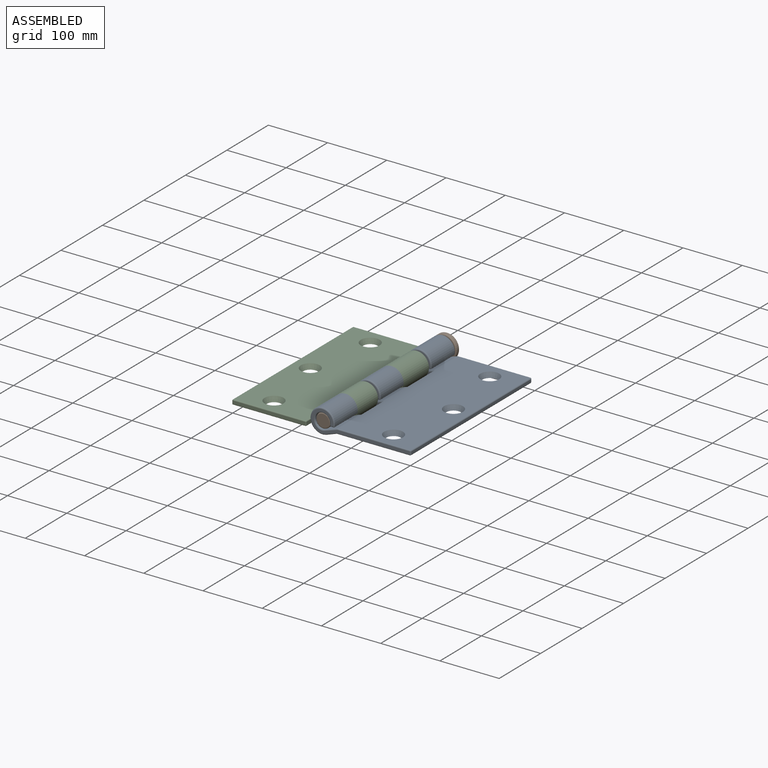
[diagram: assembled view]
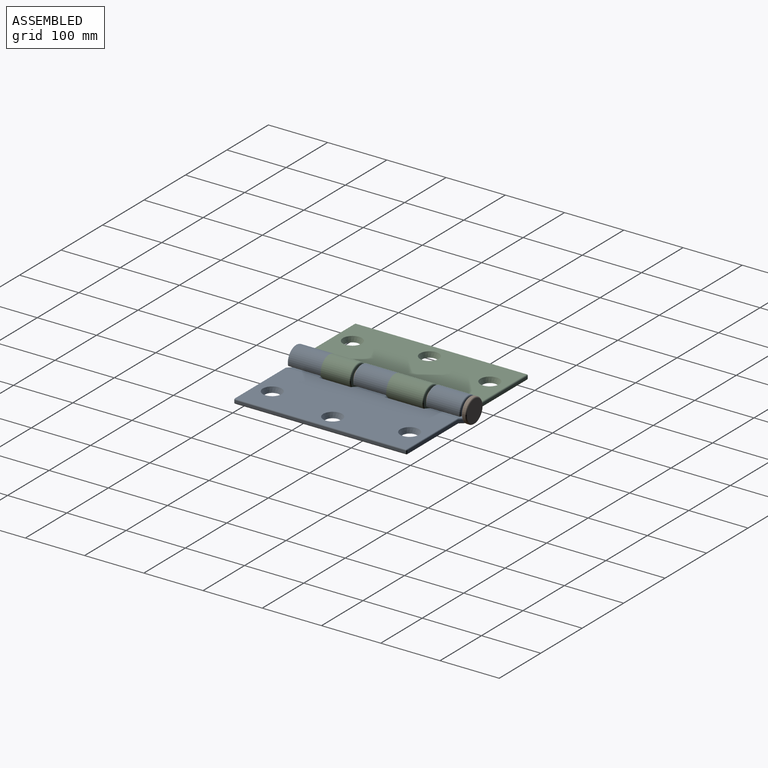
[diagram: assembled view, second angle]
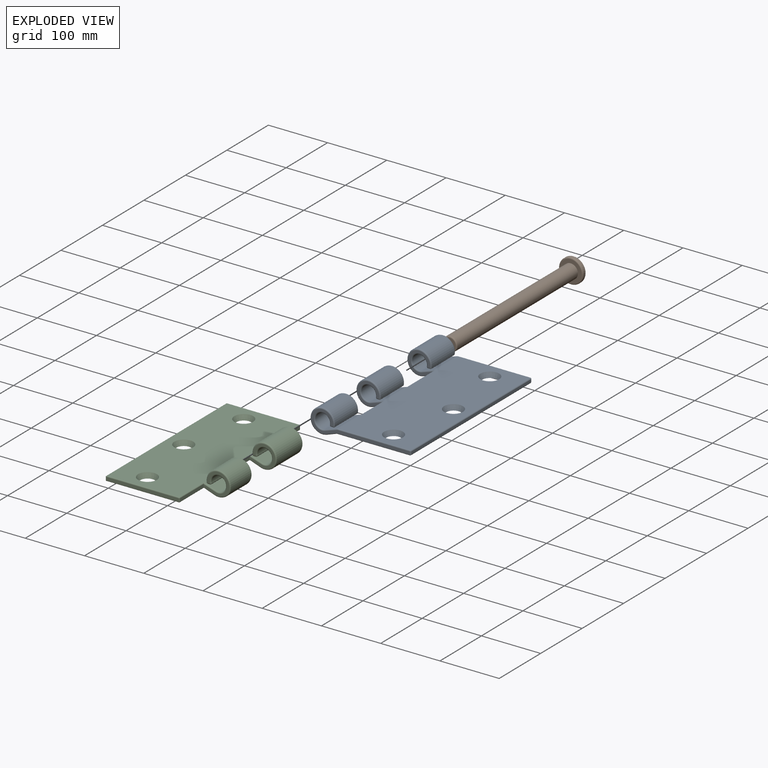
[diagram: exploded view]
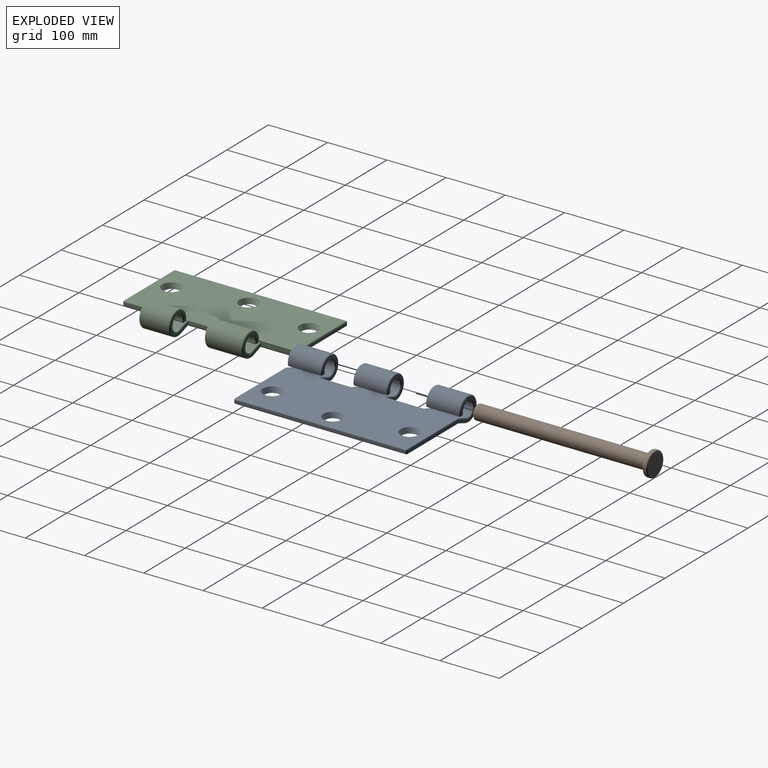
[diagram: exploded view, second angle]
ASSEMBLY  parts=3 mates=2
PART A: 99 faces, bbox 174x294.8x46.7 mm
  f0: plane 54.4x20.54mm, normal (-0.32,0,0.95), area 1178.1mm2, adj f2,f10,f38,f44
  f1: plane 54.4x20.31mm, normal (-0.32,0,0.95), area 1164.8mm2, adj f11,f40,f50,f71
  f2: plane 289x123mm, normal (0,0,1), area 32899.9mm2, adj f0,f20,f21,f22,f38,f44,f53,f54
  f3: plane 291.35x131.28mm, normal (0,0,-1), area 34002.1mm2, adj f4,f5,f14,f20,f21,f22,f24,f25
  f4: plane 54.4x17.59mm, normal (0.34,0,-0.94), area 1016.3mm2, adj f3,f6,f30,f36
  f5: plane 54.4x17.59mm, normal (0.34,0,-0.94), area 1016.3mm2, adj f3,f7,f32,f52
  f6: cylinder r=20.5mm len=54.4mm, axis (0,1,0), area 5819.9mm2, adj f4,f29,f35,f83
  f7: cylinder r=20.5mm len=54.4mm, axis (0,1,0), area 5819.9mm2, adj f5,f31,f51,f98
  f8: plane 54.4x4.07mm, normal (0,0,-1), area 221.3mm2, adj f83,f86,f87,f90
  f9: plane 54.4x4.07mm, normal (0,0,-1), area 221.3mm2, adj f91,f94,f95,f98
  f10: cylinder r=12.5mm len=54.4mm, axis (0,1,0), area 3564.8mm2, adj f0,f37,f43,f90
  f11: cylinder r=12.5mm len=54.4mm, axis (0,1,0), area 3564.8mm2, adj f1,f39,f49,f91
  f12: plane 54.4x20.31mm, normal (-0.32,0,0.95), area 1164.8mm2, adj f17,f42,f46,f64
  f13: plane 288x4mm, normal (1,0,0), area 1152mm2, adj f57,f58,f59,f60
  f14: plane 54.4x17.59mm, normal (0.34,0,-0.94), area 1016.3mm2, adj f3,f15,f34,f48
  f15: cylinder r=20.5mm len=54.4mm, axis (0,1,0), area 5819.9mm2, adj f14,f33,f47,f75
  f16: plane 54.4x4.07mm, normal (0,0,-1), area 221.3mm2, adj f75,f78,f79,f82
  f17: cylinder r=12.5mm len=54.4mm, axis (0,1,0), area 3564.8mm2, adj f12,f41,f45,f82
  f18: plane 166x37mm, normal (0,-1,0), area 1036.4mm2, adj f49,f50,f51,f52,f60,f69,f73,f94
  f19: plane 166x37mm, normal (0,1,0), area 1036.4mm2, adj f45,f46,f47,f48,f57,f62,f66,f79
  f20: cone r=16mm half-angle=26.6deg, axis (0,0,1), area 786.8mm2, adj f2,f3
  f21: cone r=16mm half-angle=26.6deg, axis (0,0,1), area 786.8mm2, adj f2,f3
  f22: cone r=16mm half-angle=26.6deg, axis (0,0,1), area 786.8mm2, adj f2,f3
  f23: plane 64.58x5mm, normal (-1,0,0), area 322.2mm2, adj f24,f25,f42,f44,f54,f56
  f24: plane 44.7x37mm, normal (0,-1,0), area 429.4mm2, adj f3,f23,f33,f34,f41,f42,f56,f78
  f25: plane 44.7x37mm, normal (0,1,0), area 429.4mm2, adj f3,f23,f35,f36,f43,f44,f56,f87
  f26: plane 52.5x5mm, normal (-1,0,0), area 261.8mm2, adj f27,f28,f38,f40,f53,f55
  f27: plane 44.7x37mm, normal (0,-1,0), area 429.4mm2, adj f3,f26,f29,f30,f37,f38,f55,f86
  f28: plane 44.7x37mm, normal (0,1,0), area 429.4mm2, adj f3,f26,f31,f32,f39,f40,f55,f95
  f29: torus R=18.5mm, axis (0,-1,0), area 324.2mm2, adj f6,f27,f30,f84
  f30: cylinder r=2mm len=18.26mm, axis (-0.94,0,-0.34), area 49.9mm2, adj f3,f4,f27,f29
  f31: torus R=18.5mm, axis (0,1,0), area 324.2mm2, adj f7,f28,f32,f97
  f32: cylinder r=2mm len=18.26mm, axis (0.94,0,0.34), area 49.9mm2, adj f3,f5,f28,f31
  f33: torus R=18.5mm, axis (0,1,0), area 324.2mm2, adj f15,f24,f34,f76
  f34: cylinder r=2mm len=18.26mm, axis (-0.94,0,-0.34), area 49.9mm2, adj f3,f14,f24,f33
  f35: torus R=18.5mm, axis (0,1,0), area 324.2mm2, adj f6,f25,f36,f85
  f36: cylinder r=2mm len=18.26mm, axis (0.94,0,0.34), area 49.9mm2, adj f3,f4,f25,f35
  f37: torus R=14.5mm, axis (0,-1,0), area 217.8mm2, adj f10,f27,f38,f88
  f38: cylinder r=2mm len=22.7mm, axis (0.95,0,0.32), area 68.7mm2, adj f0,f2,f26,f27,f37,f53
  f39: torus R=14.5mm, axis (0,1,0), area 217.8mm2, adj f11,f28,f40,f93
  f40: cylinder r=2mm len=21.45mm, axis (-0.95,0,-0.32), area 67.9mm2, adj f1,f26,f28,f39,f53,f72
  f41: torus R=14.5mm, axis (0,1,0), area 217.8mm2, adj f17,f24,f42,f80
  f42: cylinder r=2mm len=21.45mm, axis (0.95,0,0.32), area 67.9mm2, adj f12,f23,f24,f41,f54,f65
  f43: torus R=14.5mm, axis (0,1,0), area 217.8mm2, adj f10,f25,f44,f89
  f44: cylinder r=2mm len=22.7mm, axis (-0.95,0,-0.32), area 68.7mm2, adj f0,f2,f23,f25,f43,f54
  f45: torus R=14.5mm, axis (0,-1,0), area 217.8mm2, adj f17,f19,f46,f81
  f46: cylinder r=2mm len=22.37mm, axis (0.95,0,0.32), area 69.6mm2, adj f12,f19,f45,f63
  f47: torus R=18.5mm, axis (0,-1,0), area 324.2mm2, adj f15,f19,f48,f77
  f48: cylinder r=2mm len=18.26mm, axis (-0.94,0,-0.34), area 56.9mm2, adj f3,f14,f19,f47,f66
  f49: torus R=14.5mm, axis (0,-1,0), area 217.8mm2, adj f11,f18,f50,f92
  f50: cylinder r=2mm len=22.37mm, axis (-0.95,0,-0.32), area 69.6mm2, adj f1,f18,f49,f70
  f51: torus R=18.5mm, axis (0,-1,0), area 324.2mm2, adj f7,f18,f52,f96
  f52: cylinder r=2mm len=18.26mm, axis (0.94,0,0.34), area 56.9mm2, adj f3,f5,f18,f51,f73
  f53: cylinder r=1.5mm len=54.5mm, axis (0,-1,0), area 125.8mm2, adj f2,f26,f38,f40,f72
  f54: cylinder r=1.5mm len=66.58mm, axis (0,-1,0), area 154.3mm2, adj f2,f23,f42,f44,f65
  f55: cylinder r=1.5mm len=52.36mm, axis (0,1,0), area 123.4mm2, adj f3,f26,f27,f28
  f56: cylinder r=1.5mm len=64.44mm, axis (0,1,0), area 151.8mm2, adj f3,f23,f24,f25
  f57: cylinder r=2mm len=5mm, axis (0,0,-1), area 14.1mm2, adj f13,f19,f61,f67
  f58: cylinder r=2mm len=289mm, axis (0,-1,0), area 906.3mm2, adj f2,f13,f61,f68
  f59: cylinder r=2mm len=289mm, axis (0,1,0), area 906.3mm2, adj f3,f13,f67,f74
  f60: cylinder r=2mm len=5mm, axis (0,0,1), area 14.1mm2, adj f13,f18,f68,f74
  f61: bspline ~2.11x2mm, area 3.3mm2, adj f57,f58,f62
  f62: cylinder r=1.5mm len=121.18mm, axis (1,0,0), area 285.5mm2, adj f2,f19,f61,f63
  f63: bspline ~2.43x2.33mm, area 3.3mm2, adj f2,f46,f62,f64
  f64: cylinder r=1.5mm len=54.4mm, axis (0,1,0), area 26.3mm2, adj f2,f12,f63,f65
  f65: bspline ~2.4x2.14mm, area 1.6mm2, adj f2,f42,f54,f64
  f66: cylinder r=1.5mm len=124.74mm, axis (-1,0,0), area 292.1mm2, adj f3,f19,f48,f67
  f67: bspline ~2.45x2mm, area 3.3mm2, adj f57,f59,f66
  f68: bspline ~2.11x2mm, area 3.3mm2, adj f58,f60,f69
  f69: cylinder r=1.5mm len=121.18mm, axis (-1,0,0), area 285.5mm2, adj f2,f18,f68,f70
  f70: bspline ~2.43x2.25mm, area 3.3mm2, adj f2,f50,f69,f71
  f71: cylinder r=1.5mm len=54.4mm, axis (0,1,0), area 26.3mm2, adj f1,f2,f70,f72
  f72: bspline ~2.14x2.05mm, area 1.6mm2, adj f2,f40,f53,f71
  f73: cylinder r=1.5mm len=124.74mm, axis (1,0,0), area 292.1mm2, adj f3,f18,f52,f74
  f74: bspline ~2.45x2mm, area 3.3mm2, adj f59,f60,f73
  f75: cylinder r=2mm len=54.4mm, axis (0,1,0), area 153.2mm2, adj f15,f16,f76,f77
  f76: sphere r=2mm, area 5.6mm2, adj f33,f75,f78
  f77: sphere r=2mm, area 8.1mm2, adj f47,f75,f79
  f78: cylinder r=2mm len=4.07mm, axis (-1,0,0), area 12.8mm2, adj f16,f24,f76,f80
  f79: cylinder r=2mm len=4.07mm, axis (-1,0,0), area 12.8mm2, adj f16,f19,f77,f81
  f80: sphere r=2mm, area 6.9mm2, adj f41,f78,f82
  f81: sphere r=2mm, area 9.2mm2, adj f45,f79,f82
  f82: cylinder r=2mm len=54.4mm, axis (0,1,0), area 193.5mm2, adj f16,f17,f80,f81
  f83: cylinder r=2mm len=54.4mm, axis (0,1,0), area 153.2mm2, adj f6,f8,f84,f85
  f84: sphere r=2mm, area 5.6mm2, adj f29,f83,f86
  f85: sphere r=2mm, area 3.5mm2, adj f35,f83,f87
  f86: cylinder r=2mm len=4.07mm, axis (-1,0,0), area 12.8mm2, adj f8,f27,f84,f88
  f87: cylinder r=2mm len=4.07mm, axis (1,0,0), area 12.8mm2, adj f8,f25,f85,f89
  f88: sphere r=2mm, area 6.9mm2, adj f37,f86,f90
  f89: sphere r=2mm, area 9.2mm2, adj f43,f87,f90
  f90: cylinder r=2mm len=54.4mm, axis (0,1,0), area 193.5mm2, adj f8,f10,f88,f89
  f91: cylinder r=2mm len=54.4mm, axis (0,1,0), area 193.5mm2, adj f9,f11,f92,f93
  f92: sphere r=2mm, area 6.9mm2, adj f49,f91,f94
  f93: sphere r=2mm, area 9.2mm2, adj f39,f91,f95
  f94: cylinder r=2mm len=4.07mm, axis (1,0,0), area 12.8mm2, adj f9,f18,f92,f96
  f95: cylinder r=2mm len=4.07mm, axis (1,0,0), area 12.8mm2, adj f9,f28,f93,f97
  f96: sphere r=2mm, area 5.6mm2, adj f51,f94,f98
  f97: sphere r=2mm, area 3.5mm2, adj f31,f95,f98
  f98: cylinder r=2mm len=54.4mm, axis (0,1,0), area 153.2mm2, adj f7,f9,f96,f97
PART B: 8 faces, bbox 44.4x300x44.4 mm
  f0: cylinder r=12.25mm len=290mm, axis (0,-1,0), area 22321mm2, adj f4,f7
  f1: plane 20.5x20.5mm, normal (0,-1,0), area 330.1mm2, adj f7
  f2: cylinder r=20.5mm len=41mm, axis (0,-1,0), area 515.2mm2, adj f5,f6
  f3: plane 37x37mm, normal (0,1,0), area 1075.2mm2, adj f6
  f4: plane 37x37mm, normal (0,-1,0), area 603.8mm2, adj f0,f5
  f5: torus R=18.5mm, axis (0,1,0), area 390.3mm2, adj f2,f4
  f6: torus R=18.5mm, axis (0,1,0), area 390.3mm2, adj f2,f3
  f7: torus R=10.25mm, axis (0,-1,0), area 227.5mm2, adj f0,f1
PART C: 83 faces, bbox 171.7x292x44.4 mm
  f0: plane 60.44x20.54mm, normal (0.32,0,0.95), area 1308.9mm2, adj f8,f12,f25,f30
  f1: plane 48.36x20.54mm, normal (0.32,0,0.95), area 1047.3mm2, adj f9,f12,f35,f44
  f2: plane 60.44x17.59mm, normal (-0.34,0,-0.94), area 1129.1mm2, adj f4,f14,f29,f34
  f3: plane 48.36x17.59mm, normal (-0.34,0,-0.94), area 903.4mm2, adj f5,f14,f39,f40
  f4: cylinder r=20.5mm len=60.44mm, axis (0,1,0), area 6466.1mm2, adj f2,f28,f33,f70
  f5: cylinder r=20.5mm len=48.36mm, axis (0,1,0), area 5173.7mm2, adj f3,f38,f41,f67
  f6: plane 60.44x4.07mm, normal (0,0,-1), area 245.9mm2, adj f27,f32,f70,f76
  f7: plane 48.36x4.07mm, normal (0,0,-1), area 196.8mm2, adj f37,f42,f67,f73
  f8: cylinder r=12.5mm len=60.44mm, axis (0,1,0), area 3960.6mm2, adj f0,f26,f31,f76
  f9: cylinder r=12.5mm len=48.36mm, axis (0,1,0), area 3169mm2, adj f1,f36,f43,f73
  f10: plane 122x5mm, normal (0,-1,0), area 610mm2, adj f60,f62,f63,f64
  f11: plane 121x4mm, normal (0,1,0), area 484mm2, adj f55,f56,f59,f80
  f12: plane 288.5x123mm, normal (0,0,1), area 32808.5mm2, adj f0,f1,f15,f16,f17,f25,f30,f35
  f13: plane 288.5x4mm, normal (-1,0,0), area 1154mm2, adj f62,f78,f80,f82
  f14: plane 288.5x123mm, normal (0,0,-1), area 33862.1mm2, adj f2,f3,f15,f16,f17,f46,f47,f48
  f15: cone r=16mm half-angle=26.6deg, axis (0,0,1), area 786.8mm2, adj f12,f14
  f16: cone r=16mm half-angle=26.6deg, axis (0,0,1), area 786.8mm2, adj f12,f14
  f17: cone r=16mm half-angle=26.6deg, axis (0,0,1), area 786.8mm2, adj f12,f14
  f18: plane 56.99x5mm, normal (1,0,0), area 284.5mm2, adj f19,f40,f44,f52,f54,f63
  f19: plane 43x37mm, normal (0,-1,0), area 421.4mm2, adj f18,f40,f41,f42,f43,f44
  f20: plane 58.58x5mm, normal (1,0,0), area 292.1mm2, adj f21,f22,f30,f34,f35,f39,f45,f47
  f21: plane 43x37mm, normal (0,-1,0), area 421.4mm2, adj f20,f30,f31,f32,f33,f34
  f22: plane 43x37mm, normal (0,1,0), area 421.4mm2, adj f20,f35,f36,f37,f38,f39
  f23: plane 56.49x5mm, normal (1,0,0), area 282mm2, adj f24,f25,f29,f49,f50,f59
  f24: plane 43x37mm, normal (0,1,0), area 421.4mm2, adj f23,f25,f26,f27,f28,f29
  f25: cylinder r=2mm len=22.53mm, axis (-0.95,0,0.32), area 68.2mm2, adj f0,f12,f23,f24,f26,f49
  f26: torus R=14.5mm, axis (0,-1,0), area 217.8mm2, adj f8,f24,f25,f75
  f27: cylinder r=2mm len=4.07mm, axis (1,0,0), area 12.8mm2, adj f6,f24,f69,f75
  f28: torus R=18.5mm, axis (0,-1,0), area 324.2mm2, adj f4,f24,f29,f69
  f29: cylinder r=2mm len=18.94mm, axis (0.94,0,-0.34), area 59.5mm2, adj f2,f23,f24,f28,f51
  f30: cylinder r=2mm len=22.53mm, axis (0.95,0,-0.32), area 68.2mm2, adj f0,f12,f20,f21,f31,f45
  f31: torus R=14.5mm, axis (0,-1,0), area 217.8mm2, adj f8,f21,f30,f77
  f32: cylinder r=2mm len=4.07mm, axis (-1,0,0), area 12.8mm2, adj f6,f21,f71,f77
  f33: torus R=18.5mm, axis (0,-1,0), area 324.2mm2, adj f4,f21,f34,f71
  f34: cylinder r=2mm len=18.94mm, axis (-0.94,0,0.34), area 59.5mm2, adj f2,f20,f21,f33,f46
  f35: cylinder r=2mm len=22.53mm, axis (-0.95,0,0.32), area 68.2mm2, adj f1,f12,f20,f22,f36,f45
  f36: torus R=14.5mm, axis (0,1,0), area 217.8mm2, adj f9,f22,f35,f72
  f37: cylinder r=2mm len=4.07mm, axis (1,0,0), area 12.8mm2, adj f7,f22,f66,f72
  f38: torus R=18.5mm, axis (0,1,0), area 324.2mm2, adj f5,f22,f39,f66
  f39: cylinder r=2mm len=18.94mm, axis (0.94,0,-0.34), area 59.5mm2, adj f3,f20,f22,f38,f48
  f40: cylinder r=2mm len=18.94mm, axis (-0.94,0,0.34), area 59.5mm2, adj f3,f18,f19,f41,f53
  f41: torus R=18.5mm, axis (0,-1,0), area 324.2mm2, adj f5,f19,f40,f68
  f42: cylinder r=2mm len=4.07mm, axis (-1,0,0), area 12.8mm2, adj f7,f19,f68,f74
  f43: torus R=14.5mm, axis (0,-1,0), area 217.8mm2, adj f9,f19,f44,f74
  f44: cylinder r=2mm len=22.53mm, axis (0.95,0,-0.32), area 68.2mm2, adj f1,f12,f18,f19,f43,f52
  f45: cylinder r=1.5mm len=60.01mm, axis (0,1,0), area 140.1mm2, adj f12,f20,f30,f35
  f46: bspline ~2.11x1.56mm, area 2.4mm2, adj f14,f34,f47
  f47: cylinder r=1.5mm len=58.58mm, axis (0,-1,0), area 138mm2, adj f14,f20,f46,f48
  f48: bspline ~2.11x1.56mm, area 2.4mm2, adj f14,f39,f47
  f49: cylinder r=1.5mm len=57.2mm, axis (0,1,0), area 134.2mm2, adj f12,f23,f25,f58
  f50: cylinder r=1.5mm len=56.49mm, axis (0,-1,0), area 133.1mm2, adj f14,f23,f51,f57
  f51: bspline ~2.11x1.56mm, area 2.4mm2, adj f14,f29,f50
  f52: cylinder r=1.5mm len=57.7mm, axis (0,1,0), area 135.3mm2, adj f12,f18,f44,f65
  f53: bspline ~2.11x1.56mm, area 2.4mm2, adj f14,f40,f54
  f54: cylinder r=1.5mm len=56.99mm, axis (0,-1,0), area 134.3mm2, adj f14,f18,f53,f61
  f55: cylinder r=2mm len=121.5mm, axis (1,0,0), area 381.1mm2, adj f11,f14,f57,f79
  f56: cylinder r=2mm len=121.5mm, axis (-1,0,0), area 381.1mm2, adj f11,f12,f58,f81
  f57: bspline ~2.45x2mm, area 4.8mm2, adj f50,f55,f59
  f58: bspline ~2.11x2mm, area 4.8mm2, adj f49,f56,f59
  f59: cylinder r=2mm len=5mm, axis (0,0,-1), area 14.6mm2, adj f11,f23,f57,f58
  f60: cylinder r=1.5mm len=122.91mm, axis (-1,0,0), area 288.2mm2, adj f10,f14,f61,f62,f78
  f61: sphere r=1.5mm, area 3.5mm2, adj f54,f60,f63
  f62: cylinder r=1.5mm len=6.83mm, axis (0,0,1), area 13.2mm2, adj f10,f13,f60,f64,f78,f82
  f63: cylinder r=1.5mm len=5mm, axis (0,0,1), area 11.8mm2, adj f10,f18,f61,f65
  f64: cylinder r=1.5mm len=122.91mm, axis (1,0,0), area 288.2mm2, adj f10,f12,f62,f65,f82
  f65: sphere r=1.5mm, area 3.5mm2, adj f52,f63,f64
  f66: sphere r=2mm, area 5.8mm2, adj f37,f38,f67
  f67: cylinder r=2mm len=48.36mm, axis (0,1,0), area 136.2mm2, adj f5,f7,f66,f68
  f68: sphere r=2mm, area 5.8mm2, adj f41,f42,f67
  f69: sphere r=2mm, area 5.8mm2, adj f27,f28,f70
  f70: cylinder r=2mm len=60.44mm, axis (0,1,0), area 170.2mm2, adj f4,f6,f69,f71
  f71: sphere r=2mm, area 5.8mm2, adj f32,f33,f70
  f72: sphere r=2mm, area 7.1mm2, adj f36,f37,f73
  f73: cylinder r=2mm len=48.36mm, axis (0,1,0), area 172mm2, adj f7,f9,f72,f74
  f74: sphere r=2mm, area 7.1mm2, adj f42,f43,f73
  f75: sphere r=2mm, area 7.1mm2, adj f26,f27,f76
  f76: cylinder r=2mm len=60.44mm, axis (0,1,0), area 215mm2, adj f6,f8,f75,f77
  f77: sphere r=2mm, area 7.1mm2, adj f31,f32,f76
  f78: cylinder r=2mm len=289.69mm, axis (0,1,0), area 908.2mm2, adj f13,f14,f60,f62,f79
  f79: sphere r=2mm, area 6.3mm2, adj f55,f78,f80
  f80: cylinder r=2mm len=4mm, axis (0,0,-1), area 12.6mm2, adj f11,f13,f79,f81
  f81: sphere r=2mm, area 6.3mm2, adj f56,f80,f82
  f82: cylinder r=2mm len=289.69mm, axis (0,-1,0), area 908.2mm2, adj f12,f13,f62,f64,f81
PLACE A t=(-74.38,-52.51,9.3)mm
PLACE B t=(-74.38,-50.51,9.3)mm
PLACE C t=(-74.38,-56.51,9.3)mm fixed
MATE revolute C.f4 <-> A.f6  axis (0,1,0) through (-49.88,-142.11,14.3)mm
MATE slider A.f6 <-> B.f0  axis (0,-1,0) through (-49.88,-196.51,14.3)mm
